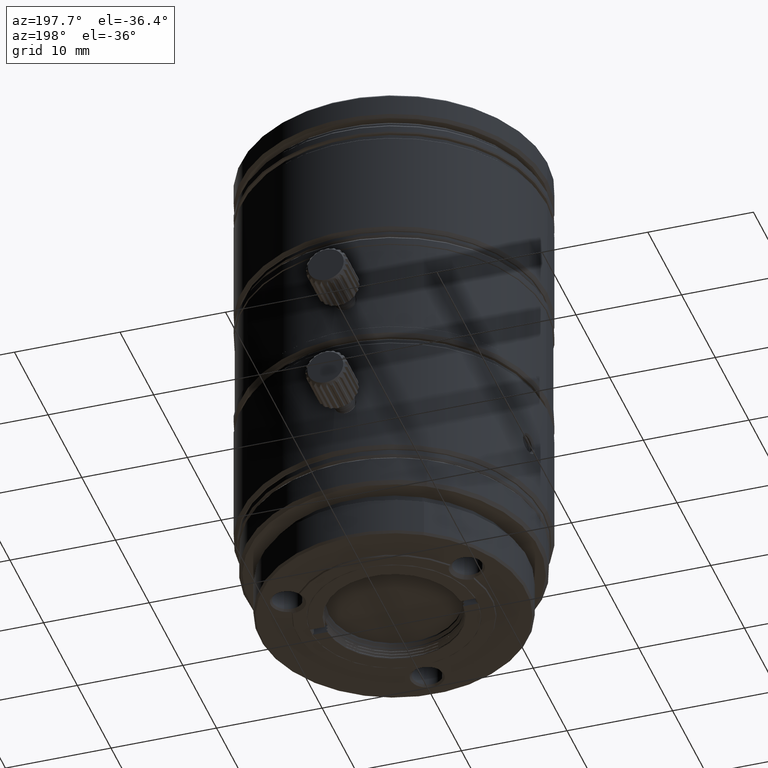
[diagram: clean part render]
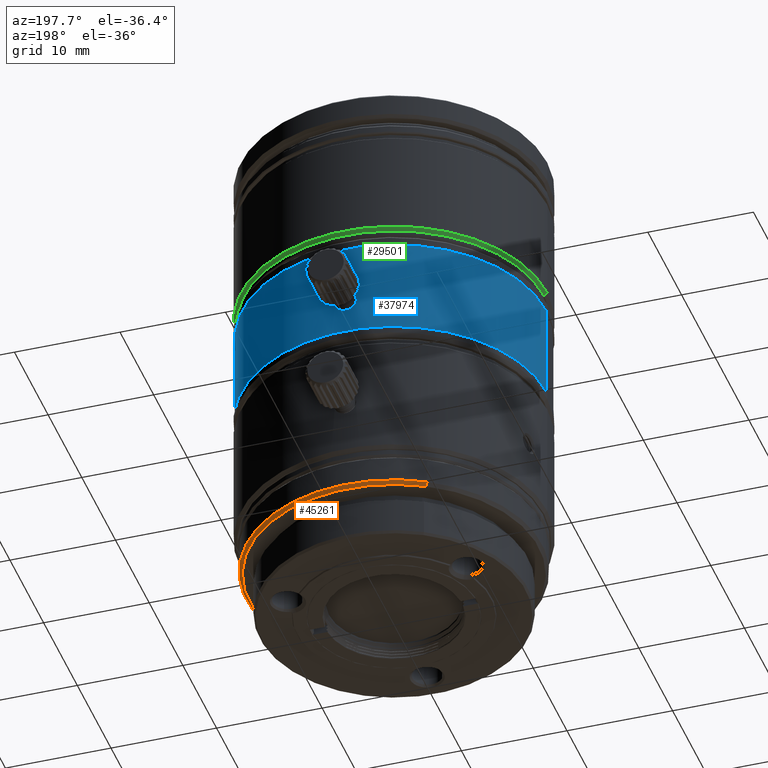
[diagram: same view with three faces highlighted in distinct colors, each labeled with its STEP entity id]
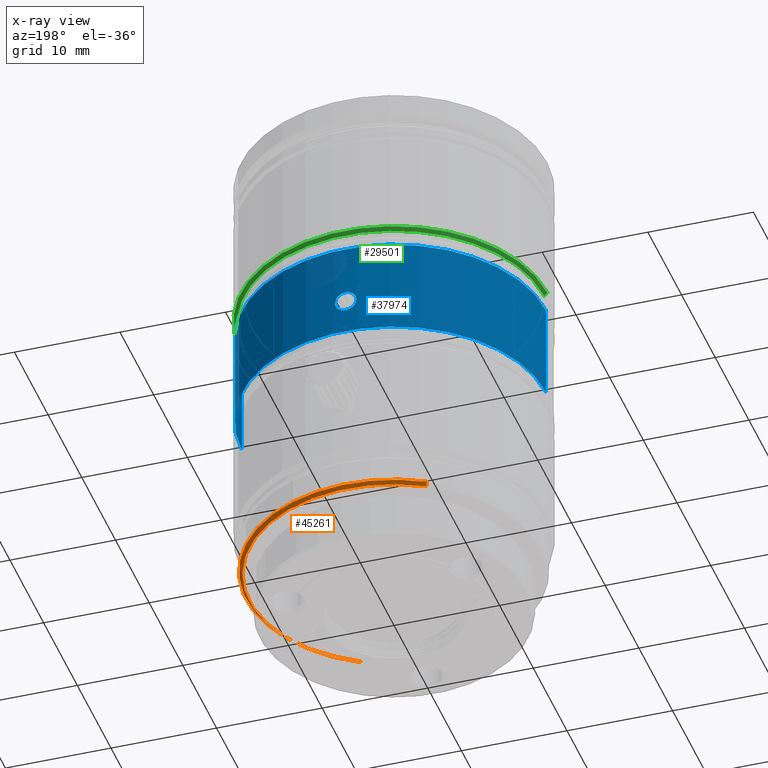
[diagram: x-ray of the same camera — body ghosted, the three highlighted faces saturated]
A machine part, auxiliary view with three faces highlighted in distinct colors.
The next image is the same camera in x-ray (body ghosted, the three faces saturated) — at least one of them is partly hidden behind the body in this view.
Their STEP definitions:

[orange] entity #45261 — the highlighted conical surface has half-angle 45 deg.
#3718 = ORIENTED_EDGE ( 'NONE', *, *, #5083, .F. ) ;
#3789 = CARTESIAN_POINT ( 'NONE',  ( -7.000000073979622428, 12.12435578111947976, -3.187626696443000451 ) ) ;
#3957 = ORIENTED_EDGE ( 'NONE', *, *, #43516, .T. ) ;
#5083 = EDGE_CURVE ( 'NONE', #22742, #15875, #32639, .T. ) ;
#8148 = CARTESIAN_POINT ( 'NONE',  ( -6.925000073624638652, 11.99445196993692875, -3.337626698973000572 ) ) ;
#11902 = LINE ( 'NONE', #34828, #19325 ) ;
#12929 = AXIS2_PLACEMENT_3D ( 'NONE', #22457, #33920, #37655 ) ;
#13511 = DIRECTION ( 'NONE',  ( 0.000000000000000000, 0.000000000000000000, 1.000000000000000000 ) ) ;
#15395 = LINE ( 'NONE', #8148, #25009 ) ;
#15645 = DIRECTION ( 'NONE',  ( 0.3535533881263445144, -0.6123724314229904708, 0.7071067861203690352 ) ) ;
#15720 = FACE_OUTER_BOUND ( 'NONE', #34033, .T. ) ;
#15875 = VERTEX_POINT ( 'NONE', #3789 ) ;
#16128 = CONICAL_SURFACE ( 'NONE', #12929, 13.85000014725000206, 0.7853981564199710164 ) ;
#18802 = CARTESIAN_POINT ( 'NONE',  ( 6.850000073406264711, -11.86454815899101511, -3.487626701502999804 ) ) ;
#19325 = VECTOR ( 'NONE', #15645, 999.9999999999998863 ) ;
#20104 = ORIENTED_EDGE ( 'NONE', *, *, #21460, .F. ) ;
#21210 = AXIS2_PLACEMENT_3D ( 'NONE', #36444, #13511, #21475 ) ;
#21460 = EDGE_CURVE ( 'NONE', #42815, #22742, #11902, .T. ) ;
#21475 = DIRECTION ( 'NONE',  ( -0.4999999999999731326, 0.8660254037844542507, 0.000000000000000000 ) ) ;
#21993 = CIRCLE ( 'NONE', #21210, 13.70000014654999454 ) ;
#22386 = ORIENTED_EDGE ( 'NONE', *, *, #29817, .T. ) ;
#22457 = CARTESIAN_POINT ( 'NONE',  ( 0.000000000000000000, 0.000000000000000000, -3.337626698973000128 ) ) ;
#22742 = VERTEX_POINT ( 'NONE', #47858 ) ;
#25009 = VECTOR ( 'NONE', #41819, 999.9999999999998863 ) ;
#27708 = VERTEX_POINT ( 'NONE', #32975 ) ;
#28640 = AXIS2_PLACEMENT_3D ( 'NONE', #39704, #33879, #30126 ) ;
#29817 = EDGE_CURVE ( 'NONE', #42815, #27708, #21993, .T. ) ;
#30126 = DIRECTION ( 'NONE',  ( -0.4999999999999731881, 0.8660254037844542507, 0.000000000000000000 ) ) ;
#32639 = CIRCLE ( 'NONE', #28640, 14.00000014795999626 ) ;
#32975 = CARTESIAN_POINT ( 'NONE',  ( -6.850000073406263823, 11.86454815899101867, -3.487626701502999804 ) ) ;
#33879 = DIRECTION ( 'NONE',  ( 0.000000000000000000, 0.000000000000000000, 1.000000000000000000 ) ) ;
#33920 = DIRECTION ( 'NONE',  ( -1.347432809111913937E-17, 2.333822085167254716E-17, 1.000000000000000000 ) ) ;
#34033 = EDGE_LOOP ( 'NONE', ( #22386, #3957, #3718, #20104 ) ) ;
#34828 = CARTESIAN_POINT ( 'NONE',  ( 6.925000073624639541, -11.99445196993692697, -3.337626698972999684 ) ) ;
#36444 = CARTESIAN_POINT ( 'NONE',  ( 0.000000000000000000, 0.000000000000000000, -3.487626701502999804 ) ) ;
#37655 = DIRECTION ( 'NONE',  ( 0.4999999999999739098, -0.8660254037844538066, 3.131269778941566675E-17 ) ) ;
#39704 = CARTESIAN_POINT ( 'NONE',  ( 0.000000000000000000, 0.000000000000000000, -3.187626696443000451 ) ) ;
#41819 = DIRECTION ( 'NONE',  ( -0.3535533881263445144, 0.6123724314229904708, 0.7071067861203690352 ) ) ;
#42815 = VERTEX_POINT ( 'NONE', #18802 ) ;
#43516 = EDGE_CURVE ( 'NONE', #27708, #15875, #15395, .T. ) ;
#45261 = ADVANCED_FACE ( 'NONE', ( #15720 ), #16128, .T. ) ;
#47858 = CARTESIAN_POINT ( 'NONE',  ( 7.000000073979624204, -12.12435578111947798, -3.187626696443000451 ) ) ;

[blue] entity #37974 — the highlighted cylindrical surface (partial cylindrical patch) has radius 14.4 mm, axis along (0, 0, 1).
#463 = VERTEX_POINT ( 'NONE', #17994 ) ;
#475 = CARTESIAN_POINT ( 'NONE',  ( -0.6184118909742817305, 14.38715964156421023, 17.81666944474491032 ) ) ;
#716 = CARTESIAN_POINT ( 'NONE',  ( -0.9501365095468241595, 14.36875749762302235, 16.66852778763375653 ) ) ;
#806 = ORIENTED_EDGE ( 'NONE', *, *, #34415, .T. ) ;
#964 = VERTEX_POINT ( 'NONE', #41565 ) ;
#1159 = CARTESIAN_POINT ( 'NONE',  ( -0.5284579850584880667, 14.39029993564879817, 16.17351082009000152 ) ) ;
#1553 = CARTESIAN_POINT ( 'NONE',  ( -0.5659613521540589609, 14.38888568336830076, 16.19763655452999984 ) ) ;
#2220 = EDGE_CURVE ( 'NONE', #9018, #2419, #5784, .T. ) ;
#2419 = VERTEX_POINT ( 'NONE', #23315 ) ;
#2481 = CARTESIAN_POINT ( 'NONE',  ( -0.4082741772194629082, 14.39462702233062430, 16.10360383327267186 ) ) ;
#2783 = CARTESIAN_POINT ( 'NONE',  ( -0.5284579850584880667, 14.39029993564879817, 16.17351082009000152 ) ) ;
#2864 = ORIENTED_EDGE ( 'NONE', *, *, #29774, .T. ) ;
#3976 = CARTESIAN_POINT ( 'NONE',  ( -0.9323245350122865149, 14.36983321918091150, 17.42016388118083015 ) ) ;
#4219 = CARTESIAN_POINT ( 'NONE',  ( 0.7688574207756975198, 14.37963507483294556, 16.36720208229229456 ) ) ;
#4758 = ORIENTED_EDGE ( 'NONE', *, *, #25129, .T. ) ;
#4934 = CARTESIAN_POINT ( 'NONE',  ( 14.40000000146000048, -1.763491390950987137E-15, 22.86598778569999979 ) ) ;
#4943 = VERTEX_POINT ( 'NONE', #9044 ) ;
#5784 = CIRCLE ( 'NONE', #37640, 14.40000000146000048 ) ;
#5968 = VECTOR ( 'NONE', #40924, 1000.000000000000000 ) ;
#7723 = CARTESIAN_POINT ( 'NONE',  ( 0.6879676838803336913, 14.38393945296741450, 17.75985621244575441 ) ) ;
#7779 = CIRCLE ( 'NONE', #44380, 14.40000000146000048 ) ;
#7972 = CARTESIAN_POINT ( 'NONE',  ( 0.4782476878818974209, 14.39243873948163532, 17.90668415961375359 ) ) ;
#9018 = VERTEX_POINT ( 'NONE', #21859 ) ;
#9044 = CARTESIAN_POINT ( 'NONE',  ( -0.5181086597484050316, 14.39037422715129999, 16.16848320378309722 ) ) ;
#9288 = CARTESIAN_POINT ( 'NONE',  ( -0.5284579850584880667, 14.39029993564879817, 16.17351082009000152 ) ) ;
#9968 = CARTESIAN_POINT ( 'NONE',  ( -0.5181086597484050316, 14.39037422715129999, 16.16848320378309722 ) ) ;
#10261 = LINE ( 'NONE', #18254, #5968 ) ;
#10353 = CARTESIAN_POINT ( 'NONE',  ( -0.6395673975116880072, 14.38579000662470087, 16.25372783040899805 ) ) ;
#10503 = CARTESIAN_POINT ( 'NONE',  ( -0.5219406603340290829, 14.39053816695630061, 16.16947987529560038 ) ) ;
#10567 = EDGE_LOOP ( 'NONE', ( #4758, #15902, #47271, #2864 ) ) ;
#10750 = B_SPLINE_CURVE_WITH_KNOTS ( 'NONE', 3,
 ( #2783, #33194, #10503, #25709 ),
 .UNSPECIFIED., .F., .F.,
 ( 4, 4 ),
 ( 0.000000000000000000, 1.000000000000000000 ),
 .UNSPECIFIED. ) ;
#11710 = CARTESIAN_POINT ( 'NONE',  ( 0.4632349479135110526, 14.39295322427028090, 16.13036433086667998 ) ) ;
#13444 = DIRECTION ( 'NONE',  ( 0.000000000000000000, 0.000000000000000000, 1.000000000000000000 ) ) ;
#13964 = CARTESIAN_POINT ( 'NONE',  ( -0.03065566447030487404, 14.40054089918692704, 16.02099380445570276 ) ) ;
#14955 = CARTESIAN_POINT ( 'NONE',  ( 0.3625298039452493626, 14.39599879515678360, 17.95835277861321799 ) ) ;
#15204 = CARTESIAN_POINT ( 'NONE',  ( -0.01827703353718667170, 14.40054983664122368, 18.02455108955071594 ) ) ;
#15699 = CARTESIAN_POINT ( 'NONE',  ( -0.6447675203959259971, 14.38551481727560066, 16.25803531807999747 ) ) ;
#15902 = ORIENTED_EDGE ( 'NONE', *, *, #21165, .T. ) ;
#15943 = CARTESIAN_POINT ( 'NONE',  ( -0.7148749237314714344, 14.38246539769464682, 17.73394929501195705 ) ) ;
#16131 = ORIENTED_EDGE ( 'NONE', *, *, #41701, .T. ) ;
#16708 = DIRECTION ( 'NONE',  ( -1.000000000000000000, 0.000000000000000000, 0.000000000000000000 ) ) ;
#16900 = EDGE_CURVE ( 'NONE', #27946, #463, #41190, .T. ) ;
#17360 = CARTESIAN_POINT ( 'NONE',  ( -0.6447675203959259971, 14.38551481727560066, 16.25803531807999747 ) ) ;
#17994 = CARTESIAN_POINT ( 'NONE',  ( -0.6369642137637699930, 14.38590526768549971, 16.25157690401999844 ) ) ;
#18254 = CARTESIAN_POINT ( 'NONE',  ( 14.40000000146000048, -1.763491390950987137E-15, -9.217626691031998831 ) ) ;
#18566 = CARTESIAN_POINT ( 'NONE',  ( 0.000000000000000000, 0.000000000000000000, 22.86598778569999979 ) ) ;
#19201 = CARTESIAN_POINT ( 'NONE',  ( -0.8246556030647376190, 14.37650494899944498, 16.43637949515834862 ) ) ;
#19440 = CARTESIAN_POINT ( 'NONE',  ( 1.013701240545730409, 14.36429453591409988, 17.08141543326559741 ) ) ;
#19441 = CYLINDRICAL_SURFACE ( 'NONE', #30110, 14.40000000146000048 ) ;
#19682 = CARTESIAN_POINT ( 'NONE',  ( 0.7757516123139288622, 14.37926724366231568, 17.66854310275147455 ) ) ;
#20238 = CARTESIAN_POINT ( 'NONE',  ( -0.6447675203959259971, 14.38551481727560066, 16.25803531807999747 ) ) ;
#21165 = EDGE_CURVE ( 'NONE', #4943, #27946, #27084, .T. ) ;
#21453 = EDGE_LOOP ( 'NONE', ( #39068, #34395, #16131, #806 ) ) ;
#21859 = CARTESIAN_POINT ( 'NONE',  ( 14.40000000146000048, -1.763491390950987137E-15, 13.67247027822000049 ) ) ;
#21872 = VECTOR ( 'NONE', #44399, 1000.000000000000000 ) ;
#23315 = CARTESIAN_POINT ( 'NONE',  ( -14.40000000146000048, 0.000000000000000000, 13.67247027822000049 ) ) ;
#25129 = EDGE_CURVE ( 'NONE', #27153, #4943, #10750, .T. ) ;
#25146 = EDGE_CURVE ( 'NONE', #9018, #46246, #10261, .T. ) ;
#25412 = CARTESIAN_POINT ( 'NONE',  ( 0.3479612756429695808, 14.39634873061719844, 16.08089954392716692 ) ) ;
#25551 = CARTESIAN_POINT ( 'NONE',  ( -0.6369642137637699930, 14.38590526768549971, 16.25157690401999844 ) ) ;
#25709 = CARTESIAN_POINT ( 'NONE',  ( -0.5181086597484050316, 14.39037422715129999, 16.16848320378309722 ) ) ;
#26665 = CARTESIAN_POINT ( 'NONE',  ( 0.9593854061170082881, 14.36803000666852270, 16.69694961353333085 ) ) ;
#26776 = DIRECTION ( 'NONE',  ( 0.000000000000000000, 0.000000000000000000, -1.000000000000000000 ) ) ;
#26913 = CARTESIAN_POINT ( 'NONE',  ( -0.3923144166592338888, 14.39509934725126783, 17.94637721717338152 ) ) ;
#27084 = B_SPLINE_CURVE_WITH_KNOTS ( 'NONE', 3,
 ( #9968, #2481, #48096, #13964, #44362, #25412, #11710, #42351, #4219, #34883, #26665, #41872, #19440, #38376, #37889, #19682, #7723, #7972, #14955, #42115, #15204, #34643, #26913, #475, #15943, #34389, #3976, #27151, #49092, #30144, #716, #19201, #41617, #15699 ),
 .UNSPECIFIED., .F., .F.,
 ( 4, 2, 2, 2, 2, 2, 2, 2, 2, 2, 2, 2, 2, 2, 2, 2, 4 ),
 ( 0.000000000000000000, 0.06249999999999998612, 0.1249999999999999722, 0.1874999999999999445, 0.2500000000000000000, 0.3125000000000000555, 0.3750000000000000555, 0.4375000000000000555, 0.5000000000000001110, 0.5625000000000001110, 0.6250000000000001110, 0.6875000000000001110, 0.7500000000000000000, 0.8125000000000000000, 0.8750000000000000000, 0.9375000000000000000, 1.000000000000000000 ),
 .UNSPECIFIED. ) ;
#27151 = CARTESIAN_POINT ( 'NONE',  ( -1.005254577323947185, 14.36491555911242912, 17.17013944951468218 ) ) ;
#27153 = VERTEX_POINT ( 'NONE', #1159 ) ;
#27739 = CARTESIAN_POINT ( 'NONE',  ( -0.6369642137637699930, 14.38590526768549971, 16.25157690401999844 ) ) ;
#27946 = VERTEX_POINT ( 'NONE', #20238 ) ;
#29286 = CARTESIAN_POINT ( 'NONE',  ( -0.6421597176948059538, 14.38567473618290116, 16.25589197206829795 ) ) ;
#29774 = EDGE_CURVE ( 'NONE', #463, #27153, #41124, .T. ) ;
#30110 = AXIS2_PLACEMENT_3D ( 'NONE', #34390, #49349, #38377 ) ;
#30144 = CARTESIAN_POINT ( 'NONE',  ( -0.9879151249023306880, 14.36607899313800552, 16.78886366428653787 ) ) ;
#30890 = FACE_OUTER_BOUND ( 'NONE', #21453, .T. ) ;
#31655 = CARTESIAN_POINT ( 'NONE',  ( 0.000000000000000000, 0.000000000000000000, 13.67247027822000049 ) ) ;
#32451 = CARTESIAN_POINT ( 'NONE',  ( -14.40000000146000048, 0.000000000000000000, -9.217626691031998831 ) ) ;
#33194 = CARTESIAN_POINT ( 'NONE',  ( -0.5252051777919849451, 14.39041938916800056, 16.17148602143020142 ) ) ;
#34151 = FACE_BOUND ( 'NONE', #10567, .T. ) ;
#34389 = CARTESIAN_POINT ( 'NONE',  ( -0.8740940125662953752, 14.37366747666230538, 17.53351570894183453 ) ) ;
#34390 = CARTESIAN_POINT ( 'NONE',  ( 0.000000000000000000, 0.000000000000000000, -9.217626691031998831 ) ) ;
#34395 = ORIENTED_EDGE ( 'NONE', *, *, #2220, .T. ) ;
#34415 = EDGE_CURVE ( 'NONE', #964, #46246, #7779, .T. ) ;
#34643 = CARTESIAN_POINT ( 'NONE',  ( -0.2725835906906396433, 14.39798138051403242, 17.98777782825678884 ) ) ;
#34883 = CARTESIAN_POINT ( 'NONE',  ( 0.9106941379807035331, 14.37134937317632044, 16.57973736572430212 ) ) ;
#37640 = AXIS2_PLACEMENT_3D ( 'NONE', #31655, #13444, #16708 ) ;
#37889 = CARTESIAN_POINT ( 'NONE',  ( 0.9185700497642173001, 14.37085056955029216, 17.44917933652993014 ) ) ;
#37974 = ADVANCED_FACE ( 'NONE', ( #30890, #34151 ), #19441, .T. ) ;
#38376 = CARTESIAN_POINT ( 'NONE',  ( 0.9670070420533140032, 14.36751353227812089, 17.33042557329560651 ) ) ;
#38377 = DIRECTION ( 'NONE',  ( -1.000000000000000000, 0.000000000000000000, 0.000000000000000000 ) ) ;
#39068 = ORIENTED_EDGE ( 'NONE', *, *, #25146, .F. ) ;
#40924 = DIRECTION ( 'NONE',  ( 0.000000000000000000, 0.000000000000000000, 1.000000000000000000 ) ) ;
#41124 = B_SPLINE_CURVE_WITH_KNOTS ( 'NONE', 3,
 ( #27739, #46421, #42939, #1553, #43428, #9288 ),
 .UNSPECIFIED., .F., .F.,
 ( 4, 1, 1, 4 ),
 ( 0.000000000000000000, 0.3333333333333000081, 0.6666666666667000474, 1.000000000000000000 ),
 .UNSPECIFIED. ) ;
#41190 = B_SPLINE_CURVE_WITH_KNOTS ( 'NONE', 3,
 ( #17360, #29286, #10353, #25551 ),
 .UNSPECIFIED., .F., .F.,
 ( 4, 4 ),
 ( 3.691291748281775339E-12, 1.000000000000000000 ),
 .UNSPECIFIED. ) ;
#41565 = CARTESIAN_POINT ( 'NONE',  ( -14.40000000146000048, 0.000000000000000000, 22.86598778569999979 ) ) ;
#41617 = CARTESIAN_POINT ( 'NONE',  ( -0.7438234914652797070, 14.38111746750632847, 16.33820174515233958 ) ) ;
#41701 = EDGE_CURVE ( 'NONE', #2419, #964, #49320, .T. ) ;
#41872 = CARTESIAN_POINT ( 'NONE',  ( 1.012424101061984771, 14.36439013914569429, 16.95340545519946929 ) ) ;
#42115 = CARTESIAN_POINT ( 'NONE',  ( 0.1079336417217863220, 14.40015831502864962, 18.01854609158008458 ) ) ;
#42351 = CARTESIAN_POINT ( 'NONE',  ( 0.6792969257915039138, 14.38437502360151399, 16.27720351032081325 ) ) ;
#42939 = CARTESIAN_POINT ( 'NONE',  ( -0.6021675062272390244, 14.38742139993290081, 16.22368539585999869 ) ) ;
#43428 = CARTESIAN_POINT ( 'NONE',  ( -0.5410768812627619884, 14.38983652775549871, 16.18136576046999764 ) ) ;
#44362 = CARTESIAN_POINT ( 'NONE',  ( 0.09553304881752036626, 14.40023636123637196, 16.02483316017483617 ) ) ;
#44380 = AXIS2_PLACEMENT_3D ( 'NONE', #18566, #26776, #45464 ) ;
#44399 = DIRECTION ( 'NONE',  ( 0.000000000000000000, 0.000000000000000000, 1.000000000000000000 ) ) ;
#45464 = DIRECTION ( 'NONE',  ( 1.000000000000000000, 0.000000000000000000, 0.000000000000000000 ) ) ;
#46246 = VERTEX_POINT ( 'NONE', #4934 ) ;
#46421 = CARTESIAN_POINT ( 'NONE',  ( -0.6255053846259529537, 14.38641262913150065, 16.24210882226000052 ) ) ;
#47271 = ORIENTED_EDGE ( 'NONE', *, *, #16900, .T. ) ;
#48096 = CARTESIAN_POINT ( 'NONE',  ( -0.2876840576747232148, 14.39769967188784605, 16.06063884745209691 ) ) ;
#49092 = CARTESIAN_POINT ( 'NONE',  ( -1.016263765424630927, 14.36410142995992878, 17.04294635526106916 ) ) ;
#49320 = LINE ( 'NONE', #32451, #21872 ) ;
#49349 = DIRECTION ( 'NONE',  ( 0.000000000000000000, 0.000000000000000000, 1.000000000000000000 ) ) ;

[green] entity #29501 — the highlighted conical surface has half-angle 45 deg.
#1020 = ORIENTED_EDGE ( 'NONE', *, *, #11309, .T. ) ;
#1069 = CARTESIAN_POINT ( 'NONE',  ( 1.595858814481610073E-14, 2.366146907679660110E-18, 24.56506684720779887 ) ) ;
#1400 = AXIS2_PLACEMENT_3D ( 'NONE', #39917, #46907, #47395 ) ;
#2613 = ORIENTED_EDGE ( 'NONE', *, *, #37663, .F. ) ;
#3764 = DIRECTION ( 'NONE',  ( -1.176786587174531927E-15, -1.860955306436955265E-20, 1.000000000000000000 ) ) ;
#3783 = CIRCLE ( 'NONE', #1400, 14.49999955006050101 ) ;
#4309 = LINE ( 'NONE', #31213, #40720 ) ;
#8918 = VECTOR ( 'NONE', #19794, 999.9999999999998863 ) ;
#11309 = EDGE_CURVE ( 'NONE', #28070, #41540, #11826, .T. ) ;
#11826 = LINE ( 'NONE', #19312, #8918 ) ;
#12382 = ORIENTED_EDGE ( 'NONE', *, *, #15659, .T. ) ;
#13909 = DIRECTION ( 'NONE',  ( -1.196361055038489890E-15, -2.931265375357370166E-30, 1.000000000000000000 ) ) ;
#14517 = DIRECTION ( 'NONE',  ( -0.9999939076577903929, -0.003490651415221733295, -1.221636245597118355E-15 ) ) ;
#15243 = FACE_OUTER_BOUND ( 'NONE', #24799, .T. ) ;
#15659 = EDGE_CURVE ( 'NONE', #30766, #28070, #46614, .T. ) ;
#16300 = DIRECTION ( 'NONE',  ( -1.221643076741504033E-15, -1.751888757880160285E-19, 1.000000000000000000 ) ) ;
#16510 = CARTESIAN_POINT ( 'NONE',  ( -14.19991354791415716, -0.04956725030270402871, 24.56506684720778466 ) ) ;
#17101 = VERTEX_POINT ( 'NONE', #23962 ) ;
#18058 = AXIS2_PLACEMENT_3D ( 'NONE', #48041, #13909, #29095 ) ;
#18997 = EDGE_CURVE ( 'NONE', #30766, #17101, #4309, .T. ) ;
#19236 = DIRECTION ( 'NONE',  ( -0.9999939076577903929, -0.003490651415221728525, -1.221636245597118355E-15 ) ) ;
#19312 = CARTESIAN_POINT ( 'NONE',  ( -14.19991354791415716, -0.04956725030270402871, 24.56506684720778466 ) ) ;
#19532 = DIRECTION ( 'NONE',  ( 0.7071024726154696571, 0.002468263284246479273, 0.7071067818211396183 ) ) ;
#19630 = ORIENTED_EDGE ( 'NONE', *, *, #35670, .F. ) ;
#19794 = DIRECTION ( 'NONE',  ( -0.7071024726154712114, -0.002468263284246566009, 0.7071067818211380640 ) ) ;
#22842 = CONICAL_SURFACE ( 'NONE', #32353, 14.20000005917390773, 0.7853981625000003852 ) ;
#23962 = CARTESIAN_POINT ( 'NONE',  ( 14.49991121056275922, 0.05061444394825174303, 24.86506633809441524 ) ) ;
#24799 = EDGE_LOOP ( 'NONE', ( #41687, #12382, #1020, #2613, #19630 ) ) ;
#25104 = AXIS2_PLACEMENT_3D ( 'NONE', #1069, #16300, #14517 ) ;
#28070 = VERTEX_POINT ( 'NONE', #16510 ) ;
#29095 = DIRECTION ( 'NONE',  ( 1.000000000000000000, 0.000000000000000000, 1.196361055038494032E-15 ) ) ;
#29284 = CIRCLE ( 'NONE', #18058, 14.49999955006050101 ) ;
#29501 = ADVANCED_FACE ( 'NONE', ( #15243 ), #22842, .T. ) ;
#30196 = CARTESIAN_POINT ( 'NONE',  ( 14.19991354791418736, 0.04956725030270228705, 24.56506684720781664 ) ) ;
#30523 = VERTEX_POINT ( 'NONE', #35415 ) ;
#30766 = VERTEX_POINT ( 'NONE', #30196 ) ;
#31213 = CARTESIAN_POINT ( 'NONE',  ( 14.19991354791418736, 0.04956725030270228705, 24.56506684720781664 ) ) ;
#32353 = AXIS2_PLACEMENT_3D ( 'NONE', #34189, #3764, #19236 ) ;
#34189 = CARTESIAN_POINT ( 'NONE',  ( 1.595858814481610073E-14, 2.366146907679660110E-18, 24.56506684720779887 ) ) ;
#35415 = CARTESIAN_POINT ( 'NONE',  ( -14.49999955006048324, 1.040834085586082254E-17, 24.86506633809437972 ) ) ;
#35670 = EDGE_CURVE ( 'NONE', #17101, #30523, #29284, .T. ) ;
#36191 = CARTESIAN_POINT ( 'NONE',  ( -14.49991121056272902, -0.05061444394825352633, 24.86506633809437972 ) ) ;
#37663 = EDGE_CURVE ( 'NONE', #30523, #41540, #3783, .T. ) ;
#39917 = CARTESIAN_POINT ( 'NONE',  ( 1.560715213184499973E-14, 2.366146907678780345E-18, 24.86506633809439748 ) ) ;
#40720 = VECTOR ( 'NONE', #19532, 999.9999999999998863 ) ;
#41540 = VERTEX_POINT ( 'NONE', #36191 ) ;
#41687 = ORIENTED_EDGE ( 'NONE', *, *, #18997, .F. ) ;
#46614 = CIRCLE ( 'NONE', #25104, 14.20000005917390773 ) ;
#46907 = DIRECTION ( 'NONE',  ( -1.196361055038489890E-15, -2.931265375357370166E-30, 1.000000000000000000 ) ) ;
#47395 = DIRECTION ( 'NONE',  ( 1.000000000000000000, 0.000000000000000000, 1.196361055038494032E-15 ) ) ;
#48041 = CARTESIAN_POINT ( 'NONE',  ( 1.560715213184499973E-14, 2.366146907678780345E-18, 24.86506633809439748 ) ) ;